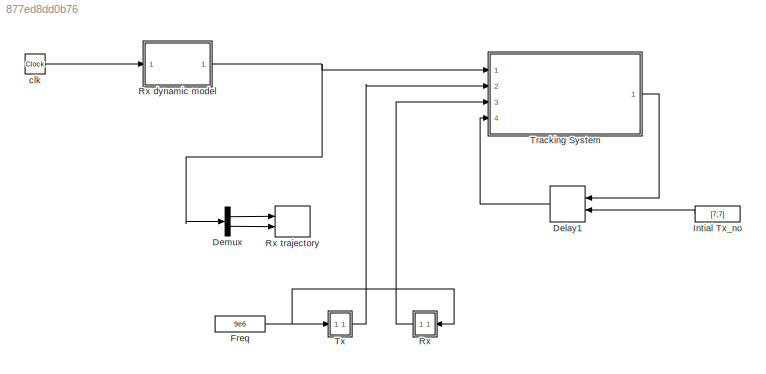
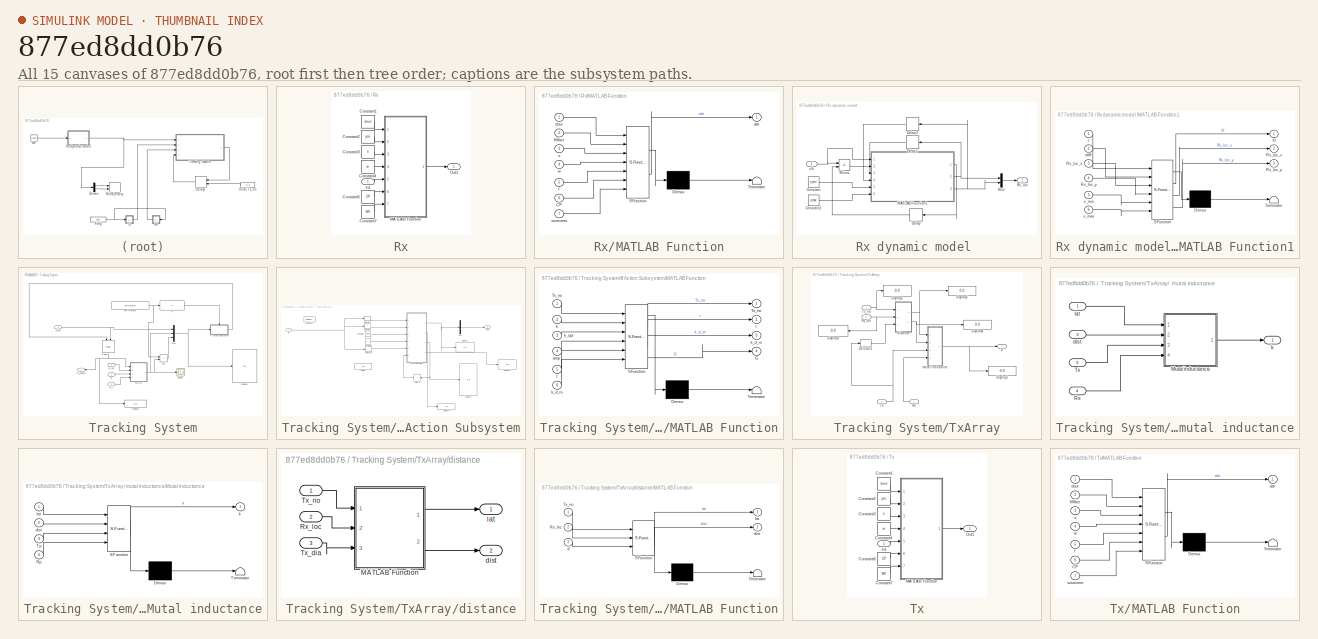
[diagram: thumbnail index - all 15 canvases of the model, root first then tree order]
MODEL slx_877ed8dd0b76
KIND model
CONFIG AbsTol = auto
CONFIG EnableMultiTasking = off
CONFIG FixedStep = auto
CONFIG MaxStep = auto
CONFIG MinStep = auto
CONFIG RelTol = 1e-3
CONFIG SampleTimeConstraint = Unconstrained
CONFIG SolverName = VariableStepAuto
CONFIG StartTime = 0.0
CONFIG StopTime = 10.0
BLOCK [Delay] Delay1
  DelayLength = 1
  InitialCondition = [2,2]
  InitialConditionSource = Input port
  InputPortMap = u0,p4
  Ports = [2, 1]
BLOCK [Demux] Demux
  Outputs = 2
  Ports = [1, 2]
BLOCK [Constant] Freq
  Value = 9e6
BLOCK [Constant] Intial Tx_no
  Value = [7;7]
  VectorParams1D = off
BLOCK [SubSystem] Rx
  Ports = [1, 1]
  RequestExecContextInheritance = off
BLOCK [SubSystem] Rx dynamic model 
  Ports = [1, 1]
  RequestExecContextInheritance = off
BLOCK [Constant] Rx dynamic model /Constant
  Value = v_min
  VectorParams1D = off
BLOCK [Constant] Rx dynamic model /Constant1
  Value = v_max
  VectorParams1D = off
BLOCK [Delay] Rx dynamic model /Delay
  DelayLength = 1
  InitialCondition = 0
  InputPortMap = u0
  Ports = [1, 1]
BLOCK [Delay] Rx dynamic model /Delay1
  DelayLength = 1
  InitialCondition = initx
  InputPortMap = u0
  Ports = [1, 1]
BLOCK [Delay] Rx dynamic model /Delay2
  DelayLength = 1
  InitialCondition = inity
  InputPortMap = u0
  Ports = [1, 1]
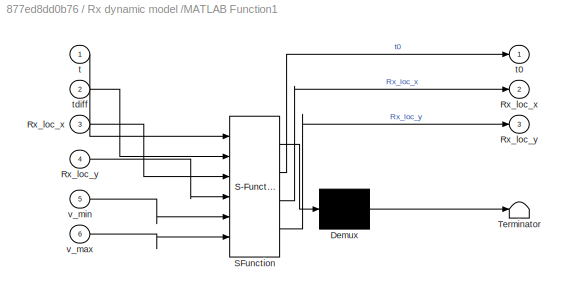
BLOCK [SubSystem] Rx dynamic model /MATLAB Function1
  ErrorFcn = Stateflow.Translate.translate
  PermitHierarchicalResolution = ExplicitOnly
  Ports = [6, 3]
  RequestExecContextInheritance = off
  SFBlockType = MATLAB Function
  TreatAsAtomicUnit = on
BLOCK [Demux] Rx dynamic model /MATLAB Function1/ Demux 
  Outputs = 1
  Ports = [1, 1]
BLOCK [S-Function] Rx dynamic model /MATLAB Function1/ SFunction 
  EnableBusSupport = on
  FunctionName = sf_sfun
  PortCounts = [6 4]
  Ports = [6, 4]
  SFcnIsStateOwnerBlock = off
  SFunctionDeploymentMode = off
  Tag = Stateflow S-Function 5
BLOCK [Terminator] Rx dynamic model /MATLAB Function1/ Terminator 
BLOCK [Outport] Rx dynamic model /MATLAB Function1/Rx_loc_x
  Port = 2
BLOCK [Inport] Rx dynamic model /MATLAB Function1/Rx_loc_x 
  Port = 3
BLOCK [Outport] Rx dynamic model /MATLAB Function1/Rx_loc_y
  Port = 3
BLOCK [Inport] Rx dynamic model /MATLAB Function1/Rx_loc_y 
  Port = 4
BLOCK [Inport] Rx dynamic model /MATLAB Function1/t
BLOCK [Outport] Rx dynamic model /MATLAB Function1/t0
BLOCK [Inport] Rx dynamic model /MATLAB Function1/tdiff
  Port = 2
BLOCK [Inport] Rx dynamic model /MATLAB Function1/v_max
  Port = 6
BLOCK [Inport] Rx dynamic model /MATLAB Function1/v_min
  Port = 5
BLOCK [Sum] Rx dynamic model /Minus
  IconShape = rectangular
  Inputs = +-
  Ports = [2, 1]
BLOCK [Mux] Rx dynamic model /Mux
  DisplayOption = bar
  Inputs = 2
  Ports = [2, 1]
BLOCK [Outport] Rx dynamic model /Rx_loc
BLOCK [Inport] Rx dynamic model /clk
BLOCK [Record] Rx trajectory
  CompatibilityTag = XY
  FileSettingsInternal = {"entries":[{"content":{"excelSettings":{"content":{},"type":"Streamout.ExcelSettings"}},"type":"Streamout.FileSettingStorage","uuid":"5ea7622f-e3f2-434e-8594-dca06b2b01b1"}],"packageUris":["http://schema.mathworks.com/mf0/streamout_blocks/R2020a"],"version":"1.0"}
  Layout = [1 1]
  Ports = [2]
  SignalsInternal = {"entries":[{"content":{"signals":[{"content":{"blockPath":["untitled/Rx trajectory"],"channel":[],"dimensions":[1],"domain":"untitled/Rx trajectory","lineColor":"#22b573","plots":[],"port":1,"sid":[""],"signalID":1150986,"signalName":"Demux:1"},"type":"RecordBlkView.Signal","uuid":"ce63fc5f-71f3-4bbf-96f5-20283097e031"},{"content":{"blockPath":["untitled/Rx trajectory"],"channel":[],"dimensions":...<+387ch>
  VisualizationBindings = {"xyplotplugin":{"info":[{"series":[],"subplotID":1}]}}
BLOCK [Constant] Rx/Constant1
  Value = dout
BLOCK [Constant] Rx/Constant2
  Value = phi
BLOCK [Constant] Rx/Constant3
  Value = s
BLOCK [Constant] Rx/Constant4
  Value = w
BLOCK [Constant] Rx/Constant6
  Value = CP
BLOCK [Constant] Rx/Constant7
  Value = SR
BLOCK [Inport] Rx/In1
BLOCK [SubSystem] Rx/MATLAB Function
  ErrorFcn = Stateflow.Translate.translate
  PermitHierarchicalResolution = ExplicitOnly
  Ports = [7, 1]
  RequestExecContextInheritance = off
  SFBlockType = MATLAB Function
  TreatAsAtomicUnit = on
BLOCK [Demux] Rx/MATLAB Function/ Demux 
  Outputs = 1
  Ports = [1, 1]
BLOCK [S-Function] Rx/MATLAB Function/ SFunction 
  EnableBusSupport = on
  FunctionName = sf_sfun
  PortCounts = [7 2]
  Ports = [7, 2]
  SFcnIsStateOwnerBlock = off
  SFunctionDeploymentMode = off
  Tag = Stateflow S-Function 4
BLOCK [Terminator] Rx/MATLAB Function/ Terminator 
BLOCK [Inport] Rx/MATLAB Function/CP
  Port = 6
BLOCK [Outport] Rx/MATLAB Function/attr
BLOCK [Inport] Rx/MATLAB Function/dout
BLOCK [Inport] Rx/MATLAB Function/f
  Port = 5
BLOCK [Inport] Rx/MATLAB Function/fillfact
  Port = 2
BLOCK [Inport] Rx/MATLAB Function/s
  Port = 3
BLOCK [Inport] Rx/MATLAB Function/sourceres
  Port = 7
BLOCK [Inport] Rx/MATLAB Function/w
  Port = 4
BLOCK [Outport] Rx/Out1
BLOCK [SubSystem] Tracking System
  Ports = [4, 1]
  RequestExecContextInheritance = off
  TreatAsAtomicUnit = on
BLOCK [Sum] Tracking System/Add
  IconShape = rectangular
  Ports = [2, 1]
BLOCK [Delay] Tracking System/Delay
  DelayLength = 1
  InitialCondition = 0
  InitialConditionSource = Input port
  InputPortMap = u0,p4
  NameLocation = left
  Ports = [2, 1]
BLOCK [Display] Tracking System/Display4
  Decimation = 1
  Ports = [1]
BLOCK [Display] Tracking System/Display5
  Decimation = 1
  Ports = [1]
BLOCK [ForIterator] Tracking System/For Iterator
  IterationLimit = 10
  IterationVariableDataType = double
  Ports = [0, 1]
  ResetStates = reset
BLOCK [If] Tracking System/If
  IfExpression = u1 < 10
  Ports = [1, 1]
  ShowElse = off
BLOCK [SubSystem] Tracking System/If Action Subsystem
  Ports = [1, 1, 0, 0, 0, 0, 0, 1]
  RequestExecContextInheritance = off
  TreatAsAtomicUnit = on
BLOCK [ActionPort] Tracking System/If Action Subsystem/Action Port
  ActionPortLabel = if(u1 < 10)
BLOCK [Constant] Tracking System/If Action Subsystem/Constant
  Value = 2.88e-2
BLOCK [Constant] Tracking System/If Action Subsystem/Constant1
  Value = 2
BLOCK [Delay] Tracking System/If Action Subsystem/Delay1
  DelayLength = 1
  InitialCondition = zeros(1,9)
  InputPortMap = u0
  Ports = [1, 1]
BLOCK [Display] Tracking System/If Action Subsystem/Display
  Decimation = 1
  Ports = [1]
BLOCK [Display] Tracking System/If Action Subsystem/Display1
  Decimation = 1
  Ports = [1]
BLOCK [Display] Tracking System/If Action Subsystem/Display2
  Decimation = 1
  Ports = [1]
BLOCK [Display] Tracking System/If Action Subsystem/Display3
  Decimation = 1
  Ports = [1]
BLOCK [Display] Tracking System/If Action Subsystem/Display4
  Decimation = 1
  Ports = [1]
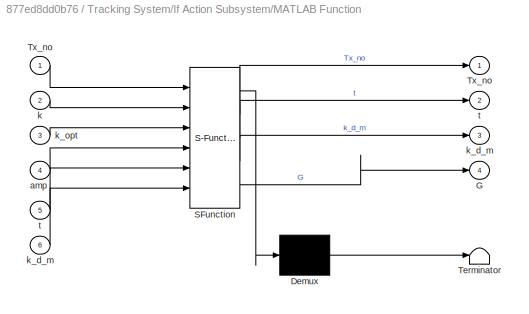
BLOCK [SubSystem] Tracking System/If Action Subsystem/MATLAB Function
  ErrorFcn = Stateflow.Translate.translate
  PermitHierarchicalResolution = ExplicitOnly
  Ports = [6, 4]
  RequestExecContextInheritance = off
  SFBlockType = MATLAB Function
  TreatAsAtomicUnit = on
BLOCK [Demux] Tracking System/If Action Subsystem/MATLAB Function/ Demux 
  Outputs = 1
  Ports = [1, 1]
BLOCK [S-Function] Tracking System/If Action Subsystem/MATLAB Function/ SFunction 
  EnableBusSupport = on
  FunctionName = sf_sfun
  PortCounts = [6 5]
  Ports = [6, 5]
  SFcnIsStateOwnerBlock = off
  SFunctionDeploymentMode = off
  Tag = Stateflow S-Function 3
BLOCK [Terminator] Tracking System/If Action Subsystem/MATLAB Function/ Terminator 
BLOCK [Outport] Tracking System/If Action Subsystem/MATLAB Function/G
  Port = 4
BLOCK [Outport] Tracking System/If Action Subsystem/MATLAB Function/Tx_no
BLOCK [Inport] Tracking System/If Action Subsystem/MATLAB Function/Tx_no 
BLOCK [Inport] Tracking System/If Action Subsystem/MATLAB Function/amp
  Port = 4
BLOCK [Inport] Tracking System/If Action Subsystem/MATLAB Function/k
  Port = 2
BLOCK [Outport] Tracking System/If Action Subsystem/MATLAB Function/k_d_m
  Port = 3
BLOCK [Inport] Tracking System/If Action Subsystem/MATLAB Function/k_d_m 
  Port = 6
BLOCK [Inport] Tracking System/If Action Subsystem/MATLAB Function/k_opt
  Port = 3
BLOCK [Outport] Tracking System/If Action Subsystem/MATLAB Function/t
  Port = 2
BLOCK [Inport] Tracking System/If Action Subsystem/MATLAB Function/t 
  Port = 5
BLOCK [Mux] Tracking System/If Action Subsystem/Mux
  DisplayOption = bar
  Inputs = 1
  Ports = [1, 1]
BLOCK [Outport] Tracking System/If Action Subsystem/Out1
BLOCK [Selector] Tracking System/If Action Subsystem/Selector1
  IndexOptions = Index vector (dialog)
  Indices = [1;2]
  InputPortWidth = 4
  OutputSizes = 1
  Ports = [1, 1]
BLOCK [Selector] Tracking System/If Action Subsystem/Selector2
  IndexOptions = Index vector (dialog)
  Indices = 3
  InputPortWidth = 4
  OutputSizes = 1
  Ports = [1, 1]
BLOCK [Selector] Tracking System/If Action Subsystem/Selector3
  IndexOptions = Index vector (dialog)
  Indices = 4
  InputPortWidth = 4
  OutputSizes = 1
  Ports = [1, 1]
BLOCK [Inport] Tracking System/If Action Subsystem/ip 
BLOCK [Mux] Tracking System/Mux
  DisplayOption = bar
  Inputs = 3
  Ports = [3, 1]
BLOCK [Inport] Tracking System/Rx
  Port = 3
BLOCK [Inport] Tracking System/Rx_loc
BLOCK [Scope] Tracking System/Scope
  Floating = off
  NumInputPorts = 1
  Ports = [1]
  ScopeSpecificationString = Simulink.scopes.TimeScopeBlockCfg('CurrentConfiguration', extmgr.ConfigurationSet(extmgr.Configuration('Core','General UI',true),extmgr.Configuration('Core','Source UI',true),extmgr.Configuration('Sources','WiredSimulink',true,'DataLoggingVariableName','ScopeData1'),extmgr.Configuration('Visuals','Time Domain',true,'SerializedDisplays',{struct('MinYLimReal','0','MaxYLimReal','0.1','YLabelReal','',...<+1784ch>
BLOCK [Inport] Tracking System/Tx
  Port = 2
BLOCK [SubSystem] Tracking System/TxArray
  Ports = [4, 1]
  RequestExecContextInheritance = off
BLOCK [SubSystem] Tracking System/TxArray/ mutal inductance
  Ports = [4, 1]
  RequestExecContextInheritance = off
BLOCK [SubSystem] Tracking System/TxArray/ mutal inductance/Mutal inductance
  ErrorFcn = Stateflow.Translate.translate
  PermitHierarchicalResolution = ExplicitOnly
  Ports = [4, 1]
  RequestExecContextInheritance = off
  SFBlockType = MATLAB Function
  TreatAsAtomicUnit = on
BLOCK [Demux] Tracking System/TxArray/ mutal inductance/Mutal inductance/ Demux 
  Outputs = 1
  Ports = [1, 1]
BLOCK [S-Function] Tracking System/TxArray/ mutal inductance/Mutal inductance/ SFunction 
  EnableBusSupport = on
  FunctionName = sf_sfun
  PortCounts = [4 2]
  Ports = [4, 2]
  SFcnIsStateOwnerBlock = off
  SFunctionDeploymentMode = off
  Tag = Stateflow S-Function 1
BLOCK [Terminator] Tracking System/TxArray/ mutal inductance/Mutal inductance/ Terminator 
BLOCK [Inport] Tracking System/TxArray/ mutal inductance/Mutal inductance/Rp
  Port = 4
BLOCK [Inport] Tracking System/TxArray/ mutal inductance/Mutal inductance/Tp
  Port = 3
BLOCK [Inport] Tracking System/TxArray/ mutal inductance/Mutal inductance/dist
  Port = 2
BLOCK [Outport] Tracking System/TxArray/ mutal inductance/Mutal inductance/k
BLOCK [Inport] Tracking System/TxArray/ mutal inductance/Mutal inductance/lat
BLOCK [Inport] Tracking System/TxArray/ mutal inductance/Rx
  Port = 4
BLOCK [Inport] Tracking System/TxArray/ mutal inductance/Tx
  Port = 3
BLOCK [Inport] Tracking System/TxArray/ mutal inductance/dist
  Port = 2
BLOCK [Outport] Tracking System/TxArray/ mutal inductance/k
BLOCK [Inport] Tracking System/TxArray/ mutal inductance/lat
BLOCK [Display] Tracking System/TxArray/Display1
  Decimation = 1
  Ports = [1]
BLOCK [Display] Tracking System/TxArray/Display2
  Decimation = 1
  Ports = [1]
BLOCK [Display] Tracking System/TxArray/Display3
  Decimation = 1
  Ports = [1]
BLOCK [Display] Tracking System/TxArray/Display4
  Decimation = 1
  Ports = [1]
BLOCK [Display] Tracking System/TxArray/Display5
  Decimation = 1
  Ports = [1]
BLOCK [Inport] Tracking System/TxArray/Rx
  Port = 4
BLOCK [Inport] Tracking System/TxArray/Rx_loc
  Port = 2
BLOCK [Selector] Tracking System/TxArray/Selector1
  IndexOptions = Index vector (dialog)
  Indices = 1
  InputPortWidth = 14
  OutputSizes = 1
  Ports = [1, 1]
BLOCK [Inport] Tracking System/TxArray/Tx
  Port = 3
BLOCK [Inport] Tracking System/TxArray/Tx_no
BLOCK [SubSystem] Tracking System/TxArray/distance
  Ports = [3, 2]
  RequestExecContextInheritance = off
BLOCK [SubSystem] Tracking System/TxArray/distance/MATLAB Function
  ErrorFcn = Stateflow.Translate.translate
  PermitHierarchicalResolution = ExplicitOnly
  Ports = [3, 2]
  RequestExecContextInheritance = off
  SFBlockType = MATLAB Function
  TreatAsAtomicUnit = on
BLOCK [Demux] Tracking System/TxArray/distance/MATLAB Function/ Demux 
  Outputs = 1
  Ports = [1, 1]
BLOCK [S-Function] Tracking System/TxArray/distance/MATLAB Function/ SFunction 
  EnableBusSupport = on
  FunctionName = sf_sfun
  PortCounts = [3 3]
  Ports = [3, 3]
  SFcnIsStateOwnerBlock = off
  SFunctionDeploymentMode = off
  Tag = Stateflow S-Function 6
BLOCK [Terminator] Tracking System/TxArray/distance/MATLAB Function/ Terminator 
BLOCK [Inport] Tracking System/TxArray/distance/MATLAB Function/Rx_loc
  Port = 2
BLOCK [Inport] Tracking System/TxArray/distance/MATLAB Function/Tx_no
BLOCK [Inport] Tracking System/TxArray/distance/MATLAB Function/d
  Port = 3
BLOCK [Outport] Tracking System/TxArray/distance/MATLAB Function/dist
  Port = 2
BLOCK [Outport] Tracking System/TxArray/distance/MATLAB Function/lat
BLOCK [Inport] Tracking System/TxArray/distance/Rx_loc
  Port = 2
BLOCK [Inport] Tracking System/TxArray/distance/Tx_dia
  Port = 3
BLOCK [Inport] Tracking System/TxArray/distance/Tx_no
BLOCK [Outport] Tracking System/TxArray/distance/dist
  Port = 2
BLOCK [Outport] Tracking System/TxArray/distance/lat
BLOCK [Outport] Tracking System/TxArray/k
BLOCK [Inport] Tracking System/Tx_no
  Port = 4
BLOCK [Outport] Tracking System/Tx_update
BLOCK [SubSystem] Tx
  Ports = [1, 1]
  RequestExecContextInheritance = off
BLOCK [Constant] Tx/Constant1
  Value = dout
BLOCK [Constant] Tx/Constant2
  Value = phi
BLOCK [Constant] Tx/Constant3
  Value = s
BLOCK [Constant] Tx/Constant4
  Value = w
BLOCK [Constant] Tx/Constant6
  Value = CP
BLOCK [Constant] Tx/Constant7
  Value = SR
BLOCK [Inport] Tx/In1
BLOCK [SubSystem] Tx/MATLAB Function
  ErrorFcn = Stateflow.Translate.translate
  PermitHierarchicalResolution = ExplicitOnly
  Ports = [7, 1]
  RequestExecContextInheritance = off
  SFBlockType = MATLAB Function
  TreatAsAtomicUnit = on
BLOCK [Demux] Tx/MATLAB Function/ Demux 
  Outputs = 1
  Ports = [1, 1]
BLOCK [S-Function] Tx/MATLAB Function/ SFunction 
  EnableBusSupport = on
  FunctionName = sf_sfun
  PortCounts = [7 2]
  Ports = [7, 2]
  SFcnIsStateOwnerBlock = off
  SFunctionDeploymentMode = off
  Tag = Stateflow S-Function 2
BLOCK [Terminator] Tx/MATLAB Function/ Terminator 
BLOCK [Inport] Tx/MATLAB Function/CP
  Port = 6
BLOCK [Outport] Tx/MATLAB Function/attr
BLOCK [Inport] Tx/MATLAB Function/dout
BLOCK [Inport] Tx/MATLAB Function/f
  Port = 5
BLOCK [Inport] Tx/MATLAB Function/fillfact
  Port = 2
BLOCK [Inport] Tx/MATLAB Function/s
  Port = 3
BLOCK [Inport] Tx/MATLAB Function/sourceres
  Port = 7
BLOCK [Inport] Tx/MATLAB Function/w
  Port = 4
BLOCK [Outport] Tx/Out1
BLOCK [Clock] clk
  Decimation = 1
LINE Delay1:1 -> Tracking System:4
LINE Demux:1 -> Rx trajectory:1
LINE Demux:2 -> Rx trajectory:2
NET Freq:1 -> Rx:1, Tx:1
LINE Intial Tx_no:1 -> Delay1:2
LINE Rx dynamic model /Constant1:1 -> Rx dynamic model /MATLAB Function1:6
LINE Rx dynamic model /Constant:1 -> Rx dynamic model /MATLAB Function1:5
LINE Rx dynamic model /Delay1:1 -> Rx dynamic model /MATLAB Function1:3
LINE Rx dynamic model /Delay2:1 -> Rx dynamic model /MATLAB Function1:4
LINE Rx dynamic model /Delay:1 -> Rx dynamic model /Minus:2
LINE Rx dynamic model /MATLAB Function1:1 -> Rx dynamic model /Delay:1
NET Rx dynamic model /MATLAB Function1:2 -> Rx dynamic model /Delay1:1, Rx dynamic model /Mux:1
NET Rx dynamic model /MATLAB Function1:3 -> Rx dynamic model /Delay2:1, Rx dynamic model /Mux:2
LINE Rx dynamic model /Minus:1 -> Rx dynamic model /MATLAB Function1:2
LINE Rx dynamic model /Mux:1 -> Rx dynamic model /Rx_loc:1
NET Rx dynamic model /clk:1 -> Rx dynamic model /MATLAB Function1:1, Rx dynamic model /Minus:1
NET Rx dynamic model :1 -> Demux:1, Tracking System:1
LINE Rx/Constant1:1 -> Rx/MATLAB Function:1
LINE Rx/Constant2:1 -> Rx/MATLAB Function:2
LINE Rx/Constant3:1 -> Rx/MATLAB Function:3
LINE Rx/Constant4:1 -> Rx/MATLAB Function:4
LINE Rx/Constant6:1 -> Rx/MATLAB Function:6
LINE Rx/Constant7:1 -> Rx/MATLAB Function:7
LINE Rx/In1:1 -> Rx/MATLAB Function:5
LINE Rx/MATLAB Function:1 -> Rx/Out1:1
LINE Rx:1 -> Tracking System:3
LINE Tracking System/Add:1 -> Tracking System/Mux:3
NET Tracking System/Delay:1 -> Tracking System/Display5:1, Tracking System/TxArray:1, Tracking System/Tx_update:1
NET Tracking System/For Iterator:1 -> Tracking System/Add:1, Tracking System/If:1
LINE Tracking System/If Action Subsystem/Constant1:1 -> Tracking System/If Action Subsystem/MATLAB Function:4
LINE Tracking System/If Action Subsystem/Constant:1 -> Tracking System/If Action Subsystem/MATLAB Function:3
LINE Tracking System/If Action Subsystem/Delay1:1 -> Tracking System/If Action Subsystem/MATLAB Function:6
NET Tracking System/If Action Subsystem/MATLAB Function:1 -> Tracking System/If Action Subsystem/Display1:1, Tracking System/If Action Subsystem/Mux:1
LINE Tracking System/If Action Subsystem/MATLAB Function:2 -> Tracking System/If Action Subsystem/Display3:1
NET Tracking System/If Action Subsystem/MATLAB Function:3 -> Tracking System/If Action Subsystem/Delay1:1, Tracking System/If Action Subsystem/Display2:1
LINE Tracking System/If Action Subsystem/MATLAB Function:4 -> Tracking System/If Action Subsystem/Display4:1
LINE Tracking System/If Action Subsystem/Mux:1 -> Tracking System/If Action Subsystem/Out1:1
LINE Tracking System/If Action Subsystem/Selector1:1 -> Tracking System/If Action Subsystem/MATLAB Function:1
LINE Tracking System/If Action Subsystem/Selector2:1 -> Tracking System/If Action Subsystem/MATLAB Function:2
LINE Tracking System/If Action Subsystem/Selector3:1 -> Tracking System/If Action Subsystem/MATLAB Function:5
NET Tracking System/If Action Subsystem/ip :1 -> Tracking System/If Action Subsystem/Selector1:1, Tracking System/If Action Subsystem/Selector2:1, Tracking System/If Action Subsystem/Selector3:1
LINE Tracking System/If Action Subsystem:1 -> Tracking System/Delay:1
LINE Tracking System/If:1 -> Tracking System/If Action Subsystem:ifaction
NET Tracking System/Mux:1 -> Tracking System/Display4:1, Tracking System/If Action Subsystem:1
LINE Tracking System/Rx:1 -> Tracking System/TxArray:4
LINE Tracking System/Rx_loc:1 -> Tracking System/TxArray:2
LINE Tracking System/Tx:1 -> Tracking System/TxArray:3
LINE Tracking System/TxArray/ mutal inductance/Mutal inductance:1 -> Tracking System/TxArray/ mutal inductance/k:1
LINE Tracking System/TxArray/ mutal inductance/Rx:1 -> Tracking System/TxArray/ mutal inductance/Mutal inductance:4
LINE Tracking System/TxArray/ mutal inductance/Tx:1 -> Tracking System/TxArray/ mutal inductance/Mutal inductance:3
LINE Tracking System/TxArray/ mutal inductance/dist:1 -> Tracking System/TxArray/ mutal inductance/Mutal inductance:2
LINE Tracking System/TxArray/ mutal inductance/lat:1 -> Tracking System/TxArray/ mutal inductance/Mutal inductance:1
NET Tracking System/TxArray/ mutal inductance:1 -> Tracking System/TxArray/Display1:1, Tracking System/TxArray/k:1
LINE Tracking System/TxArray/Rx:1 -> Tracking System/TxArray/ mutal inductance:4
NET Tracking System/TxArray/Rx_loc:1 -> Tracking System/TxArray/Display3:1, Tracking System/TxArray/distance:2
LINE Tracking System/TxArray/Selector1:1 -> Tracking System/TxArray/distance:3
NET Tracking System/TxArray/Tx:1 -> Tracking System/TxArray/ mutal inductance:3, Tracking System/TxArray/Selector1:1
NET Tracking System/TxArray/Tx_no:1 -> Tracking System/TxArray/Display2:1, Tracking System/TxArray/distance:1
LINE Tracking System/TxArray/distance/MATLAB Function:1 -> Tracking System/TxArray/distance/lat:1
LINE Tracking System/TxArray/distance/MATLAB Function:2 -> Tracking System/TxArray/distance/dist:1
LINE Tracking System/TxArray/distance/Rx_loc:1 -> Tracking System/TxArray/distance/MATLAB Function:2
LINE Tracking System/TxArray/distance/Tx_dia:1 -> Tracking System/TxArray/distance/MATLAB Function:3
LINE Tracking System/TxArray/distance/Tx_no:1 -> Tracking System/TxArray/distance/MATLAB Function:1
NET Tracking System/TxArray/distance:1 -> Tracking System/TxArray/ mutal inductance:1, Tracking System/TxArray/Display5:1
NET Tracking System/TxArray/distance:2 -> Tracking System/TxArray/ mutal inductance:2, Tracking System/TxArray/Display4:1
NET Tracking System/TxArray:1 -> Tracking System/Add:2, Tracking System/Mux:2, Tracking System/Scope:1
NET Tracking System/Tx_no:1 -> Tracking System/Delay:2, Tracking System/Mux:1
LINE Tracking System:1 -> Delay1:1
LINE Tx/Constant1:1 -> Tx/MATLAB Function:1
LINE Tx/Constant2:1 -> Tx/MATLAB Function:2
LINE Tx/Constant3:1 -> Tx/MATLAB Function:3
LINE Tx/Constant4:1 -> Tx/MATLAB Function:4
LINE Tx/Constant6:1 -> Tx/MATLAB Function:6
LINE Tx/Constant7:1 -> Tx/MATLAB Function:7
LINE Tx/In1:1 -> Tx/MATLAB Function:5
LINE Tx/MATLAB Function:1 -> Tx/Out1:1
LINE Tx:1 -> Tracking System:2
LINE clk:1 -> Rx dynamic model :1
note: NET lines group one-source signal fan-out (src -> all destinations, sorted); 1:1 wires keep LINE
CHART Tracking System/TxArray/distance/MATLAB Function states=1 transitions=1
  STATE_LABEL 'eML_blk_kernel()'
  STATE_LABEL "SCRIPT:\nfunction [lat, dist] = distance(Tx_no, Rx_loc, d)\n\ncoder.extrinsic('lat_dist');\ncoder.extrinsic('vertical_dist');\n\n\nlat = 0;\ndist = 0;\n\nlat = lat_dist(Tx_no, Rx_loc,d);\ndist = vertical_dist(Tx_no);\ndist = dist + 5e-2;\nend"
CHART Tracking System/TxArray/ mutal inductance/Mutal inductance states=1 transitions=1
  STATE_LABEL 'eML_blk_kernel()'
  STATE_LABEL "SCRIPT:\nfunction  k = solenoid_MI(lat,dist,Tp,Rp)\n\n\ncoder.extrinsic('MI');\n\n% M = 0;\nk = 0;\n\n[~,k] = MI(lat,dist,Tp,Rp);\n\nif k < 0\n    k = 0;\nend\n\nend"
CHART Tx/MATLAB Function states=1 transitions=1
  STATE_LABEL 'eML_blk_kernel()'
  STATE_LABEL "SCRIPT:\nfunction attr = PCBPhySim(dout,fillfact,s,w,f,CP,sourceres)\n\n\ny = PCBCoil(dout,fillfact,s,w,f,CP,'square',sourceres);\n\nattr = [y.dout,\n    y.din,\n    y.fillfact,\n    y.w,\n    y.s,\n    y.n,\n    y.L,\n    y.Rs,\n    y.Q,\n    y.C,\n    y.CP,\n    y.coilZ,\n    y.fSRF\n    y.f];"
CHART Tracking System/If Action
Subsystem/MATLAB Function states=1 transitions=1
  STATE_LABEL 'eML_blk_kernel()'
  STATE_LABEL "SCRIPT:\nfunction [Tx_no,t,k_d_m,G] = Controller(Tx_no, k,k_opt,amp,t,k_d_m)\n\nt = round(t);\nk_diff = abs(k_opt-k)/k_opt;\n\nk_d_m (t) = k_diff;\n    \nG = round(amp*k_d_m(1));\n\nif t < 9\n    dir_att = [-1,-1; -1,0; 0,-1; 1,1; 1,0; 0,1; 1,-1; -1,1];\n    \n    \n\n    Tx_no =G*dir_att(t,:)'+Tx_no;\n    \n    \n    \n\nelse\n    \n    dir_cand = [0,0; -1,-1; -1,0; 0,-1; 1,1; 1,0; 0,1; 1,-1; -1,1]; \n    [~, index] = ...<+118ch>"
CHART Rx/MATLAB Function states=1 transitions=1
  STATE_LABEL 'eML_blk_kernel()'
  STATE_LABEL "SCRIPT:\nfunction attr = PCBPhySim(dout,fillfact,s,w,f,CP,sourceres)\n\n\ny = PCBCoil(dout,fillfact,s,w,f,CP,'square',sourceres);\n\nattr = [y.dout,\n    y.din,\n    y.fillfact,\n    y.w,\n    y.s,\n    y.n,\n    y.L,\n    y.Rs,\n    y.Q,\n    y.C,\n    y.CP,\n    y.coilZ,\n    y.fSRF\n    y.f];"
CHART Rx dynamic model /MATLAB Function1 states=1 transitions=1
  STATE_LABEL 'eML_blk_kernel()'
  STATE_LABEL 'SCRIPT:\nfunction [t0, Rx_loc_x, Rx_loc_y] = dynamic_on_TxArray(t, tdiff, Rx_loc_x, Rx_loc_y, v_min, v_max)\n% if t>=0 && t < 8\n%     tdiff = 0;\n% elseif t>=10 && t < 19\n%     tdiff = 0;\n% elseif t>=20 && t < 29\n%     tdiff = 0;\n% elseif t>=30 && t < 39\n%     tdiff = 0;   \n% elseif t>=40 && t < 49\n%     tdiff = 0;\n% elseif t>=50 && t < 59\n%     tdiff = 0;\n% elseif t>=60 && t < 69\n%     tdiff = 0;\n% ...<+320ch>'
CHART  states=0 transitions=0
CHART  states=0 transitions=0
CHART  states=0 transitions=0
CHART  states=0 transitions=0
CHART  states=0 transitions=0
CHART  states=0 transitions=0
